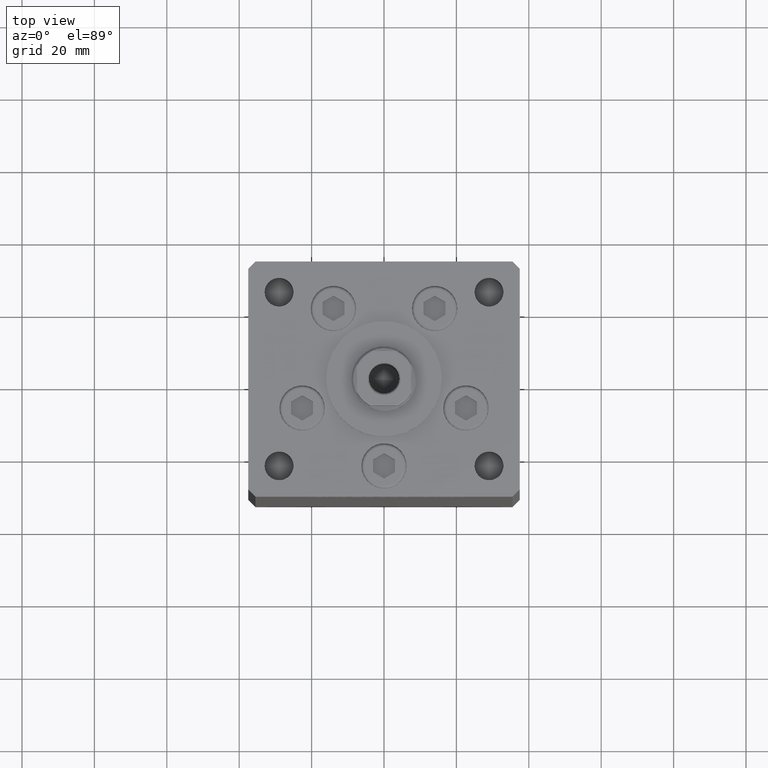
[diagram: clean part render]
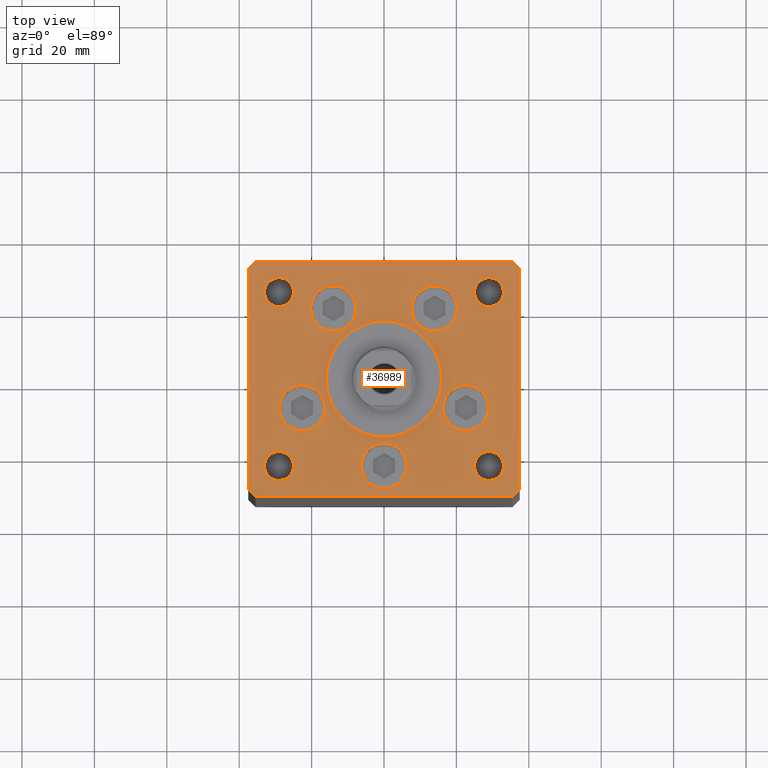
[diagram: same view with one face highlighted and labeled with its STEP entity id]
A machine part, top view. The second image highlights one B-rep face of the part: STEP entity #36989.
In plain terms, the highlighted planar face has unit normal (0, 0, 1).
Its self-contained STEP definition (entity closure, byte-faithful):
#73 = CARTESIAN_POINT ( 'NONE',  ( -20.24106857963324302, 19.50000000000000000, 0.000000000000000000 ) ) ;
#225 = VERTEX_POINT ( 'NONE', #22004 ) ;
#550 = CIRCLE ( 'NONE', #51077, 4.000000000000000000 ) ;
#618 = DIRECTION ( 'NONE',  ( 0.000000000000000000, 0.000000000000000000, 1.000000000000000000 ) ) ;
#711 = VERTEX_POINT ( 'NONE', #26823 ) ;
#768 = AXIS2_PLACEMENT_3D ( 'NONE', #26307, #41606, #37924 ) ;
#790 = EDGE_CURVE ( 'NONE', #34523, #17136, #2658, .T. ) ;
#895 = ORIENTED_EDGE ( 'NONE', *, *, #31286, .T. ) ;
#936 = CARTESIAN_POINT ( 'NONE',  ( 0.000000000000000000, -24.00000000000001066, 0.000000000000000000 ) ) ;
#972 = EDGE_CURVE ( 'NONE', #33936, #30146, #25422, .T. ) ;
#1150 = CARTESIAN_POINT ( 'NONE',  ( 37.50000000000000711, 30.50000000000001421, 0.000000000000000000 ) ) ;
#1161 = EDGE_CURVE ( 'NONE', #18513, #10344, #33001, .T. ) ;
#1488 = VERTEX_POINT ( 'NONE', #30652 ) ;
#1567 = ORIENTED_EDGE ( 'NONE', *, *, #972, .F. ) ;
#1716 = CARTESIAN_POINT ( 'NONE',  ( 16.37741699796953299, -8.000000000000000000, 0.000000000000000000 ) ) ;
#1906 = ORIENTED_EDGE ( 'NONE', *, *, #18269, .F. ) ;
#1997 = EDGE_LOOP ( 'NONE', ( #5902, #47099 ) ) ;
#2278 = DIRECTION ( 'NONE',  ( 1.000000000000000000, 1.172770800660376149E-15, 0.000000000000000000 ) ) ;
#2300 = VERTEX_POINT ( 'NONE', #8986 ) ;
#2354 = CARTESIAN_POINT ( 'NONE',  ( -35.50000000000000711, 32.49999999999997868, 0.000000000000000000 ) ) ;
#2658 = CIRCLE ( 'NONE', #32140, 6.250000000000000000 ) ;
#3057 = VERTEX_POINT ( 'NONE', #45861 ) ;
#3070 = FACE_BOUND ( 'NONE', #35539, .T. ) ;
#3375 = CARTESIAN_POINT ( 'NONE',  ( -25.00000000000000000, 24.00000000000000711, 0.000000000000000000 ) ) ;
#4433 = ORIENTED_EDGE ( 'NONE', *, *, #40746, .F. ) ;
#4479 = CIRCLE ( 'NONE', #11237, 4.000000000000000000 ) ;
#4508 = DIRECTION ( 'NONE',  ( -1.000000000000000000, 0.000000000000000000, 0.000000000000000000 ) ) ;
#4844 = ORIENTED_EDGE ( 'NONE', *, *, #25985, .T. ) ;
#4998 = CIRCLE ( 'NONE', #26907, 16.00000000000000355 ) ;
#5308 = VECTOR ( 'NONE', #2278, 1000.000000000000000 ) ;
#5320 = DIRECTION ( 'NONE',  ( 0.000000000000000000, 0.000000000000000000, 1.000000000000000000 ) ) ;
#5523 = CIRCLE ( 'NONE', #12280, 4.000000000000000000 ) ;
#5837 = VERTEX_POINT ( 'NONE', #8749 ) ;
#5902 = ORIENTED_EDGE ( 'NONE', *, *, #17996, .T. ) ;
#6404 = VERTEX_POINT ( 'NONE', #48705 ) ;
#6479 = AXIS2_PLACEMENT_3D ( 'NONE', #39542, #28164, #23184 ) ;
#6516 = FACE_BOUND ( 'NONE', #9160, .T. ) ;
#6764 = CARTESIAN_POINT ( 'NONE',  ( -6.250000000000000000, -24.00000000000001066, 0.000000000000000000 ) ) ;
#7355 = ORIENTED_EDGE ( 'NONE', *, *, #8010, .T. ) ;
#7822 = CARTESIAN_POINT ( 'NONE',  ( -28.87741699796953654, -8.000000000000000000, 0.000000000000000000 ) ) ;
#7946 = AXIS2_PLACEMENT_3D ( 'NONE', #12983, #5320, #36715 ) ;
#8010 = EDGE_CURVE ( 'NONE', #32125, #34473, #15752, .T. ) ;
#8023 = ORIENTED_EDGE ( 'NONE', *, *, #20553, .T. ) ;
#8074 = EDGE_CURVE ( 'NONE', #22540, #44407, #41451, .T. ) ;
#8368 = VERTEX_POINT ( 'NONE', #37468 ) ;
#8579 = AXIS2_PLACEMENT_3D ( 'NONE', #24870, #618, #36232 ) ;
#8749 = CARTESIAN_POINT ( 'NONE',  ( 7.741068579633241242, 19.50000000000000000, 0.000000000000000000 ) ) ;
#8986 = CARTESIAN_POINT ( 'NONE',  ( -33.00000000000000000, 24.00000000000000711, 0.000000000000000000 ) ) ;
#8994 = CARTESIAN_POINT ( 'NONE',  ( 29.00000000000000355, -23.99999999999999645, 0.000000000000000000 ) ) ;
#9160 = EDGE_LOOP ( 'NONE', ( #22304, #23856 ) ) ;
#9804 = EDGE_CURVE ( 'NONE', #17136, #34523, #17118, .T. ) ;
#10167 = DIRECTION ( 'NONE',  ( 1.000000000000000000, 0.000000000000000000, 0.000000000000000000 ) ) ;
#10209 = LINE ( 'NONE', #50541, #5308 ) ;
#10344 = VERTEX_POINT ( 'NONE', #42025 ) ;
#10396 = VECTOR ( 'NONE', #13384, 1000.000000000000000 ) ;
#10476 = FACE_BOUND ( 'NONE', #46916, .T. ) ;
#11237 = AXIS2_PLACEMENT_3D ( 'NONE', #8994, #12426, #4508 ) ;
#11254 = FACE_BOUND ( 'NONE', #45356, .T. ) ;
#11494 = AXIS2_PLACEMENT_3D ( 'NONE', #40135, #39626, #48568 ) ;
#11537 = CARTESIAN_POINT ( 'NONE',  ( -13.99106857963324124, 19.50000000000000000, 0.000000000000000000 ) ) ;
#11816 = CARTESIAN_POINT ( 'NONE',  ( 16.00000000000000355, -4.979459025271462852E-15, 0.000000000000000000 ) ) ;
#12280 = AXIS2_PLACEMENT_3D ( 'NONE', #20644, #24597, #36734 ) ;
#12318 = ORIENTED_EDGE ( 'NONE', *, *, #29314, .F. ) ;
#12426 = DIRECTION ( 'NONE',  ( -0.000000000000000000, -0.000000000000000000, -1.000000000000000000 ) ) ;
#12884 = EDGE_CURVE ( 'NONE', #3057, #16194, #12978, .T. ) ;
#12941 = DIRECTION ( 'NONE',  ( 0.000000000000000000, 0.000000000000000000, 1.000000000000000000 ) ) ;
#12978 = CIRCLE ( 'NONE', #25604, 3.999999999999996447 ) ;
#12983 = CARTESIAN_POINT ( 'NONE',  ( -22.62741699796953299, -8.000000000000000000, 0.000000000000000000 ) ) ;
#13384 = DIRECTION ( 'NONE',  ( -1.000000000000000000, -1.954618001100627573E-16, 0.000000000000000000 ) ) ;
#13714 = DIRECTION ( 'NONE',  ( 0.000000000000000000, 0.000000000000000000, 1.000000000000000000 ) ) ;
#13958 = EDGE_LOOP ( 'NONE', ( #26691, #4433 ) ) ;
#14007 = AXIS2_PLACEMENT_3D ( 'NONE', #20579, #13714, #21092 ) ;
#14056 = DIRECTION ( 'NONE',  ( -0.000000000000000000, -0.000000000000000000, -1.000000000000000000 ) ) ;
#14065 = ORIENTED_EDGE ( 'NONE', *, *, #9804, .F. ) ;
#14154 = ORIENTED_EDGE ( 'NONE', *, *, #29725, .T. ) ;
#14689 = FACE_BOUND ( 'NONE', #20671, .T. ) ;
#15192 = EDGE_CURVE ( 'NONE', #37786, #23216, #41238, .T. ) ;
#15206 = DIRECTION ( 'NONE',  ( -0.000000000000000000, 0.000000000000000000, 1.000000000000000000 ) ) ;
#15406 = DIRECTION ( 'NONE',  ( -0.000000000000000000, -0.000000000000000000, -1.000000000000000000 ) ) ;
#15593 = DIRECTION ( 'NONE',  ( 0.000000000000000000, 0.000000000000000000, 1.000000000000000000 ) ) ;
#15748 = DIRECTION ( 'NONE',  ( 1.000000000000000000, 0.000000000000000000, 0.000000000000000000 ) ) ;
#15752 = LINE ( 'NONE', #16017, #24637 ) ;
#16017 = CARTESIAN_POINT ( 'NONE',  ( -37.50000000000000000, -30.50000000000004263, 0.000000000000000000 ) ) ;
#16194 = VERTEX_POINT ( 'NONE', #22699 ) ;
#16517 = CARTESIAN_POINT ( 'NONE',  ( 29.00000000000000355, -23.99999999999999645, 0.000000000000000000 ) ) ;
#16518 = DIRECTION ( 'NONE',  ( 1.000000000000000000, 0.000000000000000000, 0.000000000000000000 ) ) ;
#16530 = CIRCLE ( 'NONE', #14007, 6.250000000000001776 ) ;
#16896 = CARTESIAN_POINT ( 'NONE',  ( 13.99106857963324124, 19.50000000000000000, 0.000000000000000000 ) ) ;
#17118 = CIRCLE ( 'NONE', #28053, 6.250000000000000000 ) ;
#17136 = VERTEX_POINT ( 'NONE', #73 ) ;
#17342 = EDGE_CURVE ( 'NONE', #23216, #32384, #41839, .T. ) ;
#17469 = EDGE_CURVE ( 'NONE', #34473, #711, #10209, .T. ) ;
#17519 = VERTEX_POINT ( 'NONE', #7822 ) ;
#17996 = EDGE_CURVE ( 'NONE', #24067, #2300, #50786, .T. ) ;
#18269 = EDGE_CURVE ( 'NONE', #5837, #50201, #27214, .T. ) ;
#18305 = EDGE_CURVE ( 'NONE', #225, #18505, #4479, .T. ) ;
#18505 = VERTEX_POINT ( 'NONE', #34443 ) ;
#18513 = VERTEX_POINT ( 'NONE', #6764 ) ;
#18903 = CARTESIAN_POINT ( 'NONE',  ( 0.000000000000000000, 0.000000000000000000, 0.000000000000000000 ) ) ;
#19109 = CARTESIAN_POINT ( 'NONE',  ( -29.00000000000000000, 24.00000000000000711, 0.000000000000000000 ) ) ;
#19169 = FACE_BOUND ( 'NONE', #51875, .T. ) ;
#19659 = AXIS2_PLACEMENT_3D ( 'NONE', #16896, #12941, #28231 ) ;
#19749 = ORIENTED_EDGE ( 'NONE', *, *, #17342, .T. ) ;
#19925 = CARTESIAN_POINT ( 'NONE',  ( 20.24106857963324302, 19.50000000000000000, 0.000000000000000000 ) ) ;
#19949 = CIRCLE ( 'NONE', #31724, 6.250000000000000000 ) ;
#20031 = CARTESIAN_POINT ( 'NONE',  ( 37.50000000000000711, -30.49999999999992895, 0.000000000000000000 ) ) ;
#20130 = DIRECTION ( 'NONE',  ( -1.000000000000000000, 0.000000000000000000, 0.000000000000000000 ) ) ;
#20446 = CARTESIAN_POINT ( 'NONE',  ( -37.50000000000000000, -30.50000000000004263, 0.000000000000000000 ) ) ;
#20553 = EDGE_CURVE ( 'NONE', #24962, #32125, #28882, .T. ) ;
#20579 = CARTESIAN_POINT ( 'NONE',  ( -22.62741699796953299, -8.000000000000000000, 0.000000000000000000 ) ) ;
#20644 = CARTESIAN_POINT ( 'NONE',  ( 29.00000000000000000, 24.00000000000000355, 0.000000000000000000 ) ) ;
#20671 = EDGE_LOOP ( 'NONE', ( #14154, #27709 ) ) ;
#21092 = DIRECTION ( 'NONE',  ( 1.000000000000000000, 0.000000000000000000, 0.000000000000000000 ) ) ;
#22004 = CARTESIAN_POINT ( 'NONE',  ( 25.00000000000000355, -23.99999999999999645, 0.000000000000000000 ) ) ;
#22304 = ORIENTED_EDGE ( 'NONE', *, *, #31103, .F. ) ;
#22540 = VERTEX_POINT ( 'NONE', #45219 ) ;
#22589 = FACE_OUTER_BOUND ( 'NONE', #50172, .T. ) ;
#22699 = CARTESIAN_POINT ( 'NONE',  ( -25.00000000000000355, -23.99999999999999645, 0.000000000000000000 ) ) ;
#23152 = ORIENTED_EDGE ( 'NONE', *, *, #45974, .F. ) ;
#23184 = DIRECTION ( 'NONE',  ( 1.000000000000000000, 0.000000000000000000, 0.000000000000000000 ) ) ;
#23208 = CARTESIAN_POINT ( 'NONE',  ( -35.50000000000000711, 32.49999999999997868, 0.000000000000000000 ) ) ;
#23216 = VERTEX_POINT ( 'NONE', #28622 ) ;
#23222 = CIRCLE ( 'NONE', #41724, 4.000000000000000000 ) ;
#23325 = CARTESIAN_POINT ( 'NONE',  ( 33.00000000000000000, 24.00000000000000355, 0.000000000000000000 ) ) ;
#23511 = CIRCLE ( 'NONE', #768, 6.250000000000001776 ) ;
#23691 = CIRCLE ( 'NONE', #46431, 6.250000000000000000 ) ;
#23856 = ORIENTED_EDGE ( 'NONE', *, *, #12884, .F. ) ;
#23938 = VECTOR ( 'NONE', #50519, 1000.000000000000000 ) ;
#24067 = VERTEX_POINT ( 'NONE', #3375 ) ;
#24567 = AXIS2_PLACEMENT_3D ( 'NONE', #29935, #25194, #41280 ) ;
#24597 = DIRECTION ( 'NONE',  ( 0.000000000000000000, 0.000000000000000000, 1.000000000000000000 ) ) ;
#24637 = VECTOR ( 'NONE', #31826, 1000.000000000000000 ) ;
#24870 = CARTESIAN_POINT ( 'NONE',  ( 0.000000000000000000, -24.00000000000001066, 0.000000000000000000 ) ) ;
#24962 = VERTEX_POINT ( 'NONE', #26535 ) ;
#25058 = CARTESIAN_POINT ( 'NONE',  ( 37.50000000000000711, 30.50000000000001421, 0.000000000000000000 ) ) ;
#25194 = DIRECTION ( 'NONE',  ( 0.000000000000000000, 0.000000000000000000, 1.000000000000000000 ) ) ;
#25422 = CIRCLE ( 'NONE', #24567, 6.250000000000001776 ) ;
#25547 = EDGE_CURVE ( 'NONE', #17519, #8368, #37411, .T. ) ;
#25604 = AXIS2_PLACEMENT_3D ( 'NONE', #46280, #49459, #10167 ) ;
#25985 = EDGE_CURVE ( 'NONE', #711, #1488, #34691, .T. ) ;
#26307 = CARTESIAN_POINT ( 'NONE',  ( 22.62741699796953299, -8.000000000000000000, 0.000000000000000000 ) ) ;
#26535 = CARTESIAN_POINT ( 'NONE',  ( -37.50000000000001421, 30.50000000000000000, 0.000000000000000000 ) ) ;
#26691 = ORIENTED_EDGE ( 'NONE', *, *, #8074, .F. ) ;
#26823 = CARTESIAN_POINT ( 'NONE',  ( 35.50000000000001421, -32.49999999999992184, 0.000000000000000000 ) ) ;
#26907 = AXIS2_PLACEMENT_3D ( 'NONE', #40117, #39086, #26947 ) ;
#26947 = DIRECTION ( 'NONE',  ( 1.000000000000000000, 0.000000000000000000, 0.000000000000000000 ) ) ;
#27214 = CIRCLE ( 'NONE', #19659, 6.250000000000000000 ) ;
#27352 = VECTOR ( 'NONE', #33324, 1000.000000000000000 ) ;
#27602 = DIRECTION ( 'NONE',  ( 0.000000000000000000, 0.000000000000000000, 1.000000000000000000 ) ) ;
#27709 = ORIENTED_EDGE ( 'NONE', *, *, #18305, .T. ) ;
#27955 = CARTESIAN_POINT ( 'NONE',  ( -35.50000000000001421, -32.50000000000000711, 0.000000000000000000 ) ) ;
#28053 = AXIS2_PLACEMENT_3D ( 'NONE', #36002, #44429, #37034 ) ;
#28164 = DIRECTION ( 'NONE',  ( 0.000000000000000000, 0.000000000000000000, 1.000000000000000000 ) ) ;
#28231 = DIRECTION ( 'NONE',  ( 1.000000000000000000, 0.000000000000000000, 0.000000000000000000 ) ) ;
#28367 = DIRECTION ( 'NONE',  ( 2.275047181608926165E-16, -1.000000000000000000, 0.000000000000000000 ) ) ;
#28561 = CARTESIAN_POINT ( 'NONE',  ( 28.87741699796953654, -8.000000000000000000, 0.000000000000000000 ) ) ;
#28622 = CARTESIAN_POINT ( 'NONE',  ( 35.50000000000000000, 32.49999999999999289, 0.000000000000000000 ) ) ;
#28845 = ORIENTED_EDGE ( 'NONE', *, *, #32757, .F. ) ;
#28882 = LINE ( 'NONE', #44971, #50887 ) ;
#29314 = EDGE_CURVE ( 'NONE', #30072, #6404, #5523, .T. ) ;
#29416 = DIRECTION ( 'NONE',  ( 1.000000000000000000, 0.000000000000000000, 0.000000000000000000 ) ) ;
#29464 = ORIENTED_EDGE ( 'NONE', *, *, #32462, .F. ) ;
#29723 = AXIS2_PLACEMENT_3D ( 'NONE', #19109, #15406, #20130 ) ;
#29725 = EDGE_CURVE ( 'NONE', #18505, #225, #23222, .T. ) ;
#29935 = CARTESIAN_POINT ( 'NONE',  ( 22.62741699796953299, -8.000000000000000000, 0.000000000000000000 ) ) ;
#30072 = VERTEX_POINT ( 'NONE', #23325 ) ;
#30146 = VERTEX_POINT ( 'NONE', #28561 ) ;
#30652 = CARTESIAN_POINT ( 'NONE',  ( 37.50000000000000711, -30.49999999999992895, 0.000000000000000000 ) ) ;
#30764 = PLANE ( 'NONE',  #36876 ) ;
#31019 = FACE_BOUND ( 'NONE', #48477, .T. ) ;
#31093 = DIRECTION ( 'NONE',  ( -0.000000000000000000, -0.000000000000000000, -1.000000000000000000 ) ) ;
#31103 = EDGE_CURVE ( 'NONE', #16194, #3057, #35041, .T. ) ;
#31286 = EDGE_CURVE ( 'NONE', #1488, #37786, #51946, .T. ) ;
#31371 = DIRECTION ( 'NONE',  ( -0.7071067811865524577, -0.7071067811865426878, 0.000000000000000000 ) ) ;
#31668 = DIRECTION ( 'NONE',  ( 1.000000000000000000, 0.000000000000000000, 0.000000000000000000 ) ) ;
#31724 = AXIS2_PLACEMENT_3D ( 'NONE', #936, #48683, #16518 ) ;
#31826 = DIRECTION ( 'NONE',  ( 0.7071067811865512365, -0.7071067811865439090, 0.000000000000000000 ) ) ;
#32125 = VERTEX_POINT ( 'NONE', #20446 ) ;
#32140 = AXIS2_PLACEMENT_3D ( 'NONE', #11537, #27602, #15748 ) ;
#32336 = DIRECTION ( 'NONE',  ( -1.000000000000000000, 0.000000000000000000, 0.000000000000000000 ) ) ;
#32364 = EDGE_CURVE ( 'NONE', #8368, #17519, #16530, .T. ) ;
#32384 = VERTEX_POINT ( 'NONE', #2354 ) ;
#32462 = EDGE_CURVE ( 'NONE', #6404, #30072, #35943, .T. ) ;
#32757 = EDGE_CURVE ( 'NONE', #10344, #18513, #19949, .T. ) ;
#33001 = CIRCLE ( 'NONE', #8579, 6.250000000000000000 ) ;
#33237 = EDGE_CURVE ( 'NONE', #2300, #24067, #550, .T. ) ;
#33324 = DIRECTION ( 'NONE',  ( -0.7071067811865524577, 0.7071067811865426878, 0.000000000000000000 ) ) ;
#33371 = CARTESIAN_POINT ( 'NONE',  ( 0.000000000000000000, -6.938893903907228378E-15, 0.000000000000000000 ) ) ;
#33936 = VERTEX_POINT ( 'NONE', #1716 ) ;
#34345 = CARTESIAN_POINT ( 'NONE',  ( -29.00000000000000000, 24.00000000000000711, 0.000000000000000000 ) ) ;
#34443 = CARTESIAN_POINT ( 'NONE',  ( 33.00000000000000000, -23.99999999999999645, 0.000000000000000000 ) ) ;
#34473 = VERTEX_POINT ( 'NONE', #27955 ) ;
#34523 = VERTEX_POINT ( 'NONE', #49819 ) ;
#34691 = LINE ( 'NONE', #38657, #23938 ) ;
#34984 = FACE_BOUND ( 'NONE', #45542, .T. ) ;
#35041 = CIRCLE ( 'NONE', #11494, 3.999999999999996447 ) ;
#35222 = ORIENTED_EDGE ( 'NONE', *, *, #790, .F. ) ;
#35245 = FACE_BOUND ( 'NONE', #1997, .T. ) ;
#35539 = EDGE_LOOP ( 'NONE', ( #45785, #1906 ) ) ;
#35943 = CIRCLE ( 'NONE', #6479, 4.000000000000000000 ) ;
#36002 = CARTESIAN_POINT ( 'NONE',  ( -13.99106857963324124, 19.50000000000000000, 0.000000000000000000 ) ) ;
#36232 = DIRECTION ( 'NONE',  ( 1.000000000000000000, 0.000000000000000000, 0.000000000000000000 ) ) ;
#36715 = DIRECTION ( 'NONE',  ( 1.000000000000000000, 0.000000000000000000, 0.000000000000000000 ) ) ;
#36734 = DIRECTION ( 'NONE',  ( 1.000000000000000000, 0.000000000000000000, 0.000000000000000000 ) ) ;
#36739 = ORIENTED_EDGE ( 'NONE', *, *, #15192, .T. ) ;
#36876 = AXIS2_PLACEMENT_3D ( 'NONE', #18903, #15206, #51068 ) ;
#36989 = ADVANCED_FACE ( 'NONE', ( #47116, #34984, #3070, #11254, #19169, #10476, #35245, #31019, #6516, #22589, #14689 ), #30764, .T. ) ;
#37012 = ORIENTED_EDGE ( 'NONE', *, *, #32364, .F. ) ;
#37034 = DIRECTION ( 'NONE',  ( 1.000000000000000000, 0.000000000000000000, 0.000000000000000000 ) ) ;
#37112 = CARTESIAN_POINT ( 'NONE',  ( 35.50000000000000000, 32.49999999999999289, 0.000000000000000000 ) ) ;
#37334 = DIRECTION ( 'NONE',  ( 0.000000000000000000, 0.000000000000000000, 1.000000000000000000 ) ) ;
#37411 = CIRCLE ( 'NONE', #7946, 6.250000000000001776 ) ;
#37468 = CARTESIAN_POINT ( 'NONE',  ( -16.37741699796953299, -8.000000000000000000, 0.000000000000000000 ) ) ;
#37786 = VERTEX_POINT ( 'NONE', #25058 ) ;
#37924 = DIRECTION ( 'NONE',  ( 1.000000000000000000, 0.000000000000000000, 0.000000000000000000 ) ) ;
#38047 = DIRECTION ( 'NONE',  ( -1.000000000000000000, 0.000000000000000000, 0.000000000000000000 ) ) ;
#38657 = CARTESIAN_POINT ( 'NONE',  ( 35.50000000000001421, -32.49999999999992184, 0.000000000000000000 ) ) ;
#38716 = ORIENTED_EDGE ( 'NONE', *, *, #1161, .F. ) ;
#39086 = DIRECTION ( 'NONE',  ( 0.000000000000000000, 0.000000000000000000, 1.000000000000000000 ) ) ;
#39306 = DIRECTION ( 'NONE',  ( 0.000000000000000000, 1.000000000000000000, 0.000000000000000000 ) ) ;
#39542 = CARTESIAN_POINT ( 'NONE',  ( 29.00000000000000000, 24.00000000000000355, 0.000000000000000000 ) ) ;
#39626 = DIRECTION ( 'NONE',  ( 0.000000000000000000, 0.000000000000000000, 1.000000000000000000 ) ) ;
#40117 = CARTESIAN_POINT ( 'NONE',  ( 0.000000000000000000, -6.938893903907228378E-15, 0.000000000000000000 ) ) ;
#40135 = CARTESIAN_POINT ( 'NONE',  ( -29.00000000000000000, -23.99999999999999645, 0.000000000000000000 ) ) ;
#40270 = VECTOR ( 'NONE', #31371, 1000.000000000000000 ) ;
#40633 = AXIS2_PLACEMENT_3D ( 'NONE', #33371, #37334, #29416 ) ;
#40746 = EDGE_CURVE ( 'NONE', #44407, #22540, #4998, .T. ) ;
#41238 = LINE ( 'NONE', #1150, #27352 ) ;
#41280 = DIRECTION ( 'NONE',  ( 1.000000000000000000, 0.000000000000000000, 0.000000000000000000 ) ) ;
#41451 = CIRCLE ( 'NONE', #40633, 16.00000000000000355 ) ;
#41606 = DIRECTION ( 'NONE',  ( 0.000000000000000000, 0.000000000000000000, 1.000000000000000000 ) ) ;
#41724 = AXIS2_PLACEMENT_3D ( 'NONE', #16517, #31093, #32336 ) ;
#41839 = LINE ( 'NONE', #37112, #10396 ) ;
#42025 = CARTESIAN_POINT ( 'NONE',  ( 6.250000000000000000, -24.00000000000001066, 0.000000000000000000 ) ) ;
#43252 = EDGE_CURVE ( 'NONE', #32384, #24962, #47209, .T. ) ;
#43471 = VECTOR ( 'NONE', #39306, 1000.000000000000000 ) ;
#44087 = ORIENTED_EDGE ( 'NONE', *, *, #25547, .F. ) ;
#44407 = VERTEX_POINT ( 'NONE', #11816 ) ;
#44429 = DIRECTION ( 'NONE',  ( 0.000000000000000000, 0.000000000000000000, 1.000000000000000000 ) ) ;
#44971 = CARTESIAN_POINT ( 'NONE',  ( -37.50000000000001421, 30.50000000000000000, 0.000000000000000000 ) ) ;
#45219 = CARTESIAN_POINT ( 'NONE',  ( -16.00000000000000355, -6.938893903907228378E-15, 0.000000000000000000 ) ) ;
#45356 = EDGE_LOOP ( 'NONE', ( #23152, #1567 ) ) ;
#45542 = EDGE_LOOP ( 'NONE', ( #35222, #14065 ) ) ;
#45785 = ORIENTED_EDGE ( 'NONE', *, *, #51709, .F. ) ;
#45861 = CARTESIAN_POINT ( 'NONE',  ( -32.99999999999999289, -23.99999999999999645, 0.000000000000000000 ) ) ;
#45974 = EDGE_CURVE ( 'NONE', #30146, #33936, #23511, .T. ) ;
#46280 = CARTESIAN_POINT ( 'NONE',  ( -29.00000000000000000, -23.99999999999999645, 0.000000000000000000 ) ) ;
#46431 = AXIS2_PLACEMENT_3D ( 'NONE', #51714, #15593, #31668 ) ;
#46916 = EDGE_LOOP ( 'NONE', ( #37012, #44087 ) ) ;
#47099 = ORIENTED_EDGE ( 'NONE', *, *, #33237, .T. ) ;
#47116 = FACE_BOUND ( 'NONE', #13958, .T. ) ;
#47209 = LINE ( 'NONE', #23208, #40270 ) ;
#48477 = EDGE_LOOP ( 'NONE', ( #12318, #29464 ) ) ;
#48568 = DIRECTION ( 'NONE',  ( 1.000000000000000000, 0.000000000000000000, 0.000000000000000000 ) ) ;
#48683 = DIRECTION ( 'NONE',  ( 0.000000000000000000, 0.000000000000000000, 1.000000000000000000 ) ) ;
#48705 = CARTESIAN_POINT ( 'NONE',  ( 24.99999999999999645, 24.00000000000000355, 0.000000000000000000 ) ) ;
#49459 = DIRECTION ( 'NONE',  ( 0.000000000000000000, 0.000000000000000000, 1.000000000000000000 ) ) ;
#49819 = CARTESIAN_POINT ( 'NONE',  ( -7.741068579633241242, 19.50000000000000000, 0.000000000000000000 ) ) ;
#50172 = EDGE_LOOP ( 'NONE', ( #7355, #51552, #4844, #895, #36739, #19749, #51844, #8023 ) ) ;
#50201 = VERTEX_POINT ( 'NONE', #19925 ) ;
#50519 = DIRECTION ( 'NONE',  ( 0.7071067811865463515, 0.7071067811865487940, 0.000000000000000000 ) ) ;
#50541 = CARTESIAN_POINT ( 'NONE',  ( -35.50000000000001421, -32.50000000000000711, 0.000000000000000000 ) ) ;
#50786 = CIRCLE ( 'NONE', #29723, 4.000000000000000000 ) ;
#50887 = VECTOR ( 'NONE', #28367, 1000.000000000000000 ) ;
#51068 = DIRECTION ( 'NONE',  ( 1.000000000000000000, 0.000000000000000000, 0.000000000000000000 ) ) ;
#51077 = AXIS2_PLACEMENT_3D ( 'NONE', #34345, #14056, #38047 ) ;
#51552 = ORIENTED_EDGE ( 'NONE', *, *, #17469, .T. ) ;
#51709 = EDGE_CURVE ( 'NONE', #50201, #5837, #23691, .T. ) ;
#51714 = CARTESIAN_POINT ( 'NONE',  ( 13.99106857963324124, 19.50000000000000000, 0.000000000000000000 ) ) ;
#51844 = ORIENTED_EDGE ( 'NONE', *, *, #43252, .T. ) ;
#51875 = EDGE_LOOP ( 'NONE', ( #28845, #38716 ) ) ;
#51946 = LINE ( 'NONE', #20031, #43471 ) ;